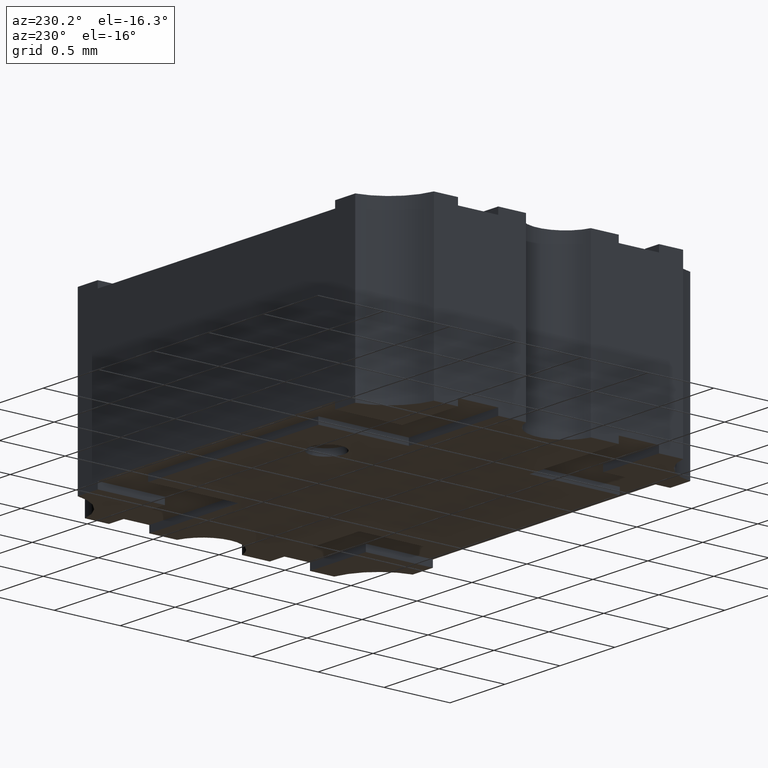
[diagram: clean part render]
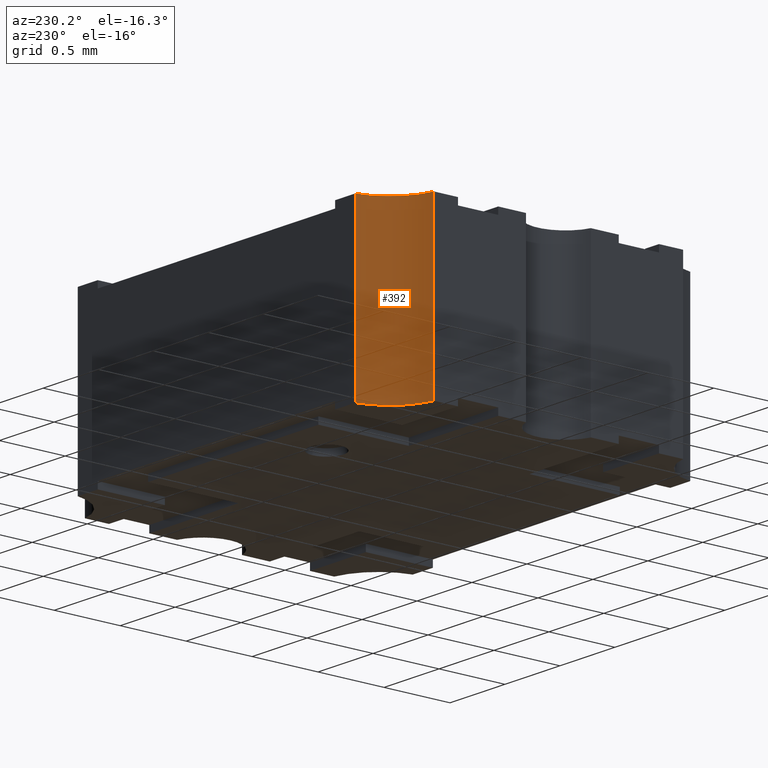
[diagram: same view with one face highlighted and labeled with its STEP entity id]
A machine part, auxiliary view. The second image highlights one B-rep face of the part: STEP entity #392.
In plain terms, the highlighted cylindrical surface (partial cylindrical patch) has radius 0.3937 mm, axis along (-0, -0, -1).
Its self-contained STEP definition (entity closure, byte-faithful):
#13 = EDGE_CURVE ( 'NONE', #1062, #183, #777, .T. ) ;
#27 = DIRECTION ( 'NONE',  ( -0.000000000000000000, -0.000000000000000000, -1.000000000000000000 ) ) ;
#35 = AXIS2_PLACEMENT_3D ( 'NONE', #1024, #1249, #2175 ) ;
#135 = ORIENTED_EDGE ( 'NONE', *, *, #1391, .T. ) ;
#161 = AXIS2_PLACEMENT_3D ( 'NONE', #241, #565, #2262 ) ;
#183 = VERTEX_POINT ( 'NONE', #557 ) ;
#241 = CARTESIAN_POINT ( 'NONE',  ( -0.06500000000204733674, 0.05250000000024277608, 0.002000000000000000042 ) ) ;
#301 = ORIENTED_EDGE ( 'NONE', *, *, #445, .F. ) ;
#343 = EDGE_LOOP ( 'NONE', ( #887, #301, #135, #724 ) ) ;
#366 = LINE ( 'NONE', #593, #2402 ) ;
#387 = CARTESIAN_POINT ( 'NONE',  ( -0.06500000000204733674, 0.05250000000024277608, 0.04999999999999999584 ) ) ;
#392 = ADVANCED_FACE ( 'NONE', ( #1172 ), #396, .F. ) ;
#396 = CYLINDRICAL_SURFACE ( 'NONE', #161, 0.01550000000000002071 ) ;
#433 = AXIS2_PLACEMENT_3D ( 'NONE', #387, #745, #1139 ) ;
#445 = EDGE_CURVE ( 'NONE', #2133, #1694, #366, .T. ) ;
#539 = CARTESIAN_POINT ( 'NONE',  ( -0.06250000000204736228, 0.03720294145946440034, 0.000000000000000000 ) ) ;
#557 = CARTESIAN_POINT ( 'NONE',  ( -0.04970294146126896795, 0.05000000000024273916, 0.000000000000000000 ) ) ;
#565 = DIRECTION ( 'NONE',  ( -0.000000000000000000, -0.000000000000000000, -1.000000000000000000 ) ) ;
#593 = CARTESIAN_POINT ( 'NONE',  ( -0.06250000000204736228, 0.03720294145946440034, 0.002000000000000000042 ) ) ;
#659 = CIRCLE ( 'NONE', #35, 0.01550000000000002071 ) ;
#724 = ORIENTED_EDGE ( 'NONE', *, *, #13, .T. ) ;
#745 = DIRECTION ( 'NONE',  ( 0.000000000000000000, 0.000000000000000000, 1.000000000000000000 ) ) ;
#777 = LINE ( 'NONE', #2094, #867 ) ;
#844 = EDGE_CURVE ( 'NONE', #183, #1694, #659, .T. ) ;
#867 = VECTOR ( 'NONE', #27, 39.37007874015748143 ) ;
#887 = ORIENTED_EDGE ( 'NONE', *, *, #844, .T. ) ;
#1024 = CARTESIAN_POINT ( 'NONE',  ( -0.06500000000204733674, 0.05250000000024277608, 0.000000000000000000 ) ) ;
#1062 = VERTEX_POINT ( 'NONE', #1769 ) ;
#1092 = CIRCLE ( 'NONE', #433, 0.01550000000000002071 ) ;
#1139 = DIRECTION ( 'NONE',  ( 1.000000000000000000, 0.000000000000000000, 0.000000000000000000 ) ) ;
#1172 = FACE_OUTER_BOUND ( 'NONE', #343, .T. ) ;
#1249 = DIRECTION ( 'NONE',  ( -0.000000000000000000, -0.000000000000000000, -1.000000000000000000 ) ) ;
#1289 = CARTESIAN_POINT ( 'NONE',  ( -0.06250000000204736228, 0.03720294145946440034, 0.04999999999999999584 ) ) ;
#1350 = DIRECTION ( 'NONE',  ( -0.000000000000000000, -0.000000000000000000, -1.000000000000000000 ) ) ;
#1391 = EDGE_CURVE ( 'NONE', #2133, #1062, #1092, .T. ) ;
#1694 = VERTEX_POINT ( 'NONE', #539 ) ;
#1769 = CARTESIAN_POINT ( 'NONE',  ( -0.04970294146126896795, 0.05000000000024273222, 0.04999999999999999584 ) ) ;
#2094 = CARTESIAN_POINT ( 'NONE',  ( -0.04970294146126896795, 0.05000000000024273916, 0.002000000000000000042 ) ) ;
#2133 = VERTEX_POINT ( 'NONE', #1289 ) ;
#2175 = DIRECTION ( 'NONE',  ( 1.000000000000000000, 0.000000000000000000, 0.000000000000000000 ) ) ;
#2262 = DIRECTION ( 'NONE',  ( -1.000000000000000000, 0.000000000000000000, 0.000000000000000000 ) ) ;
#2402 = VECTOR ( 'NONE', #1350, 39.37007874015748143 ) ;